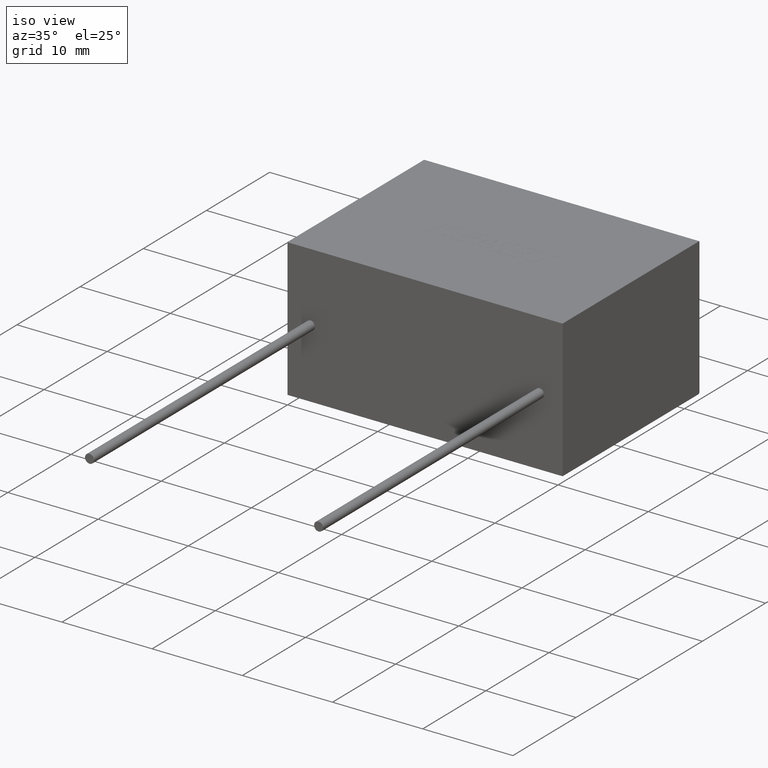
[diagram: clean part render]
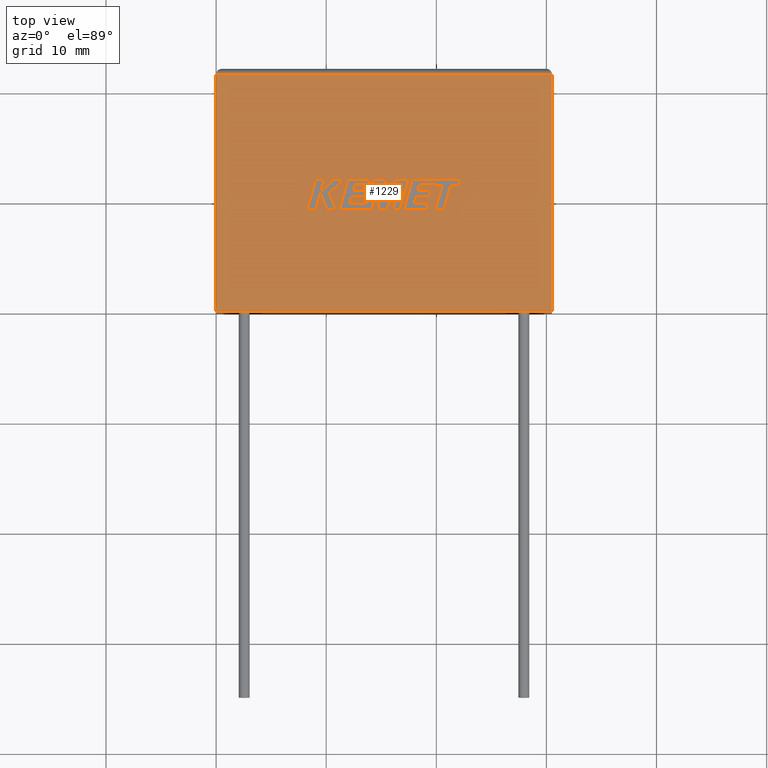
[diagram: tour spotlight — one face highlighted and labeled with its STEP entity id]
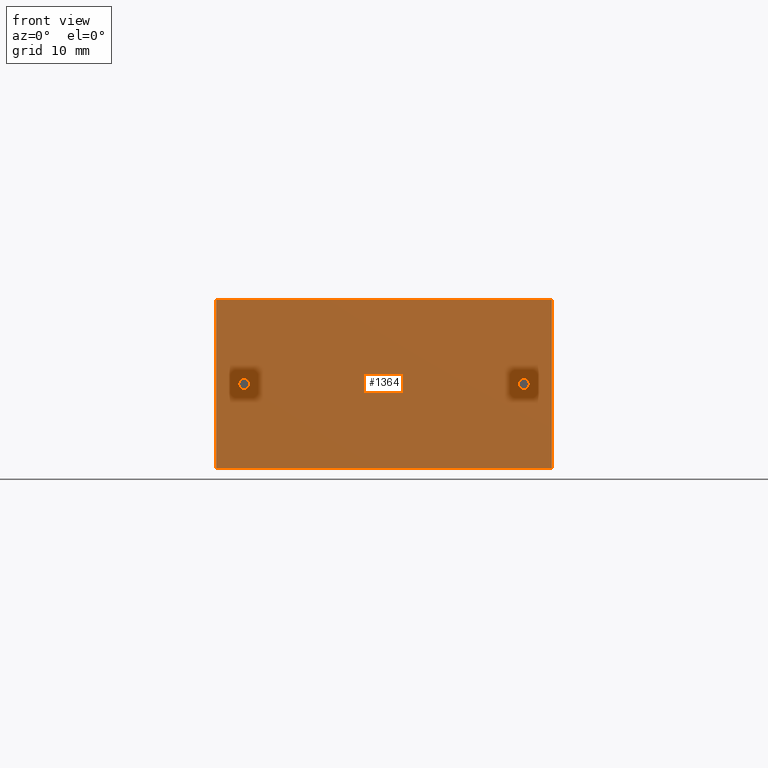
[diagram: tour spotlight — one face highlighted and labeled with its STEP entity id]
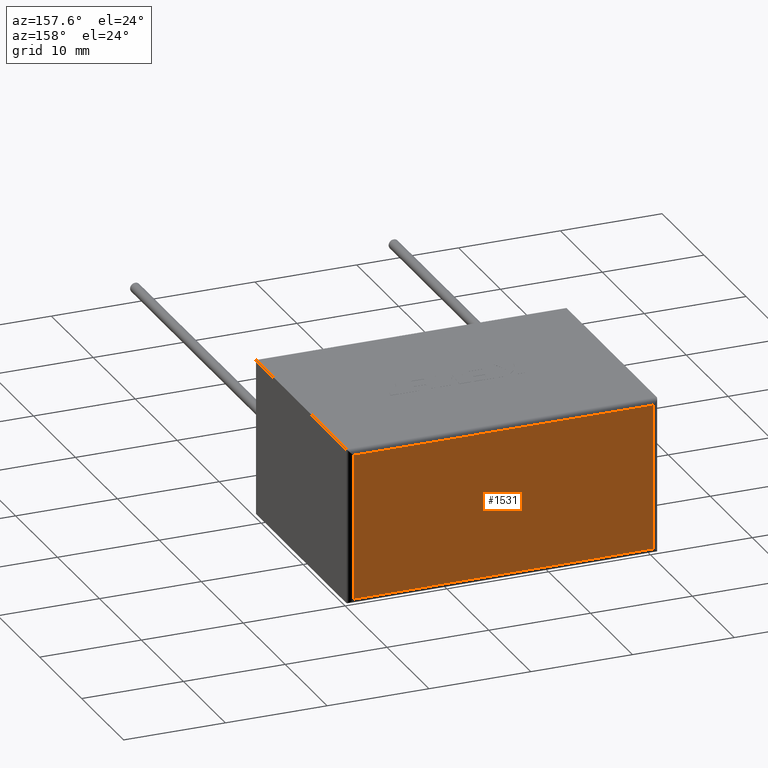
[diagram: tour spotlight — one face highlighted and labeled with its STEP entity id]
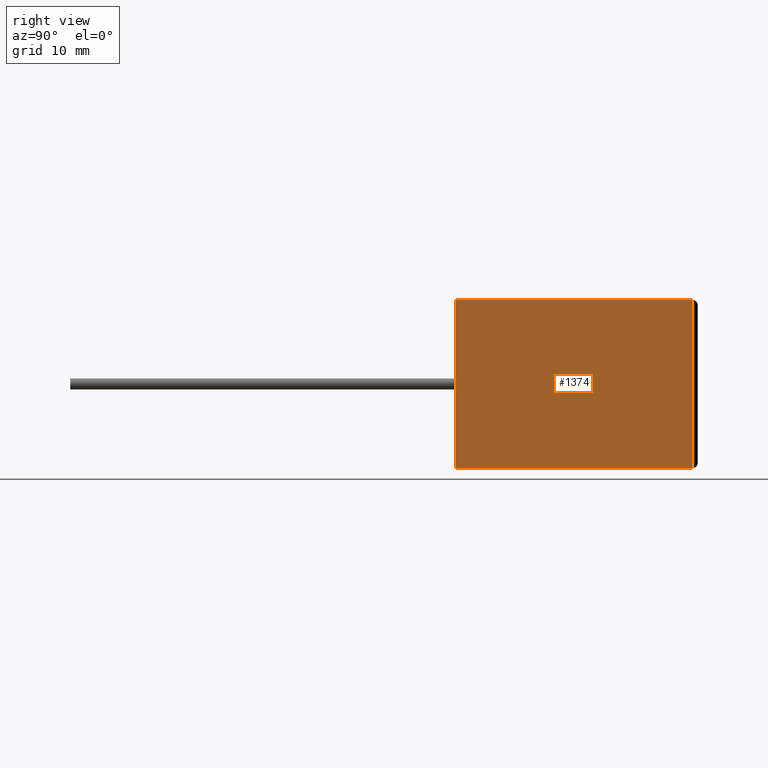
[diagram: tour spotlight — one face highlighted and labeled with its STEP entity id]
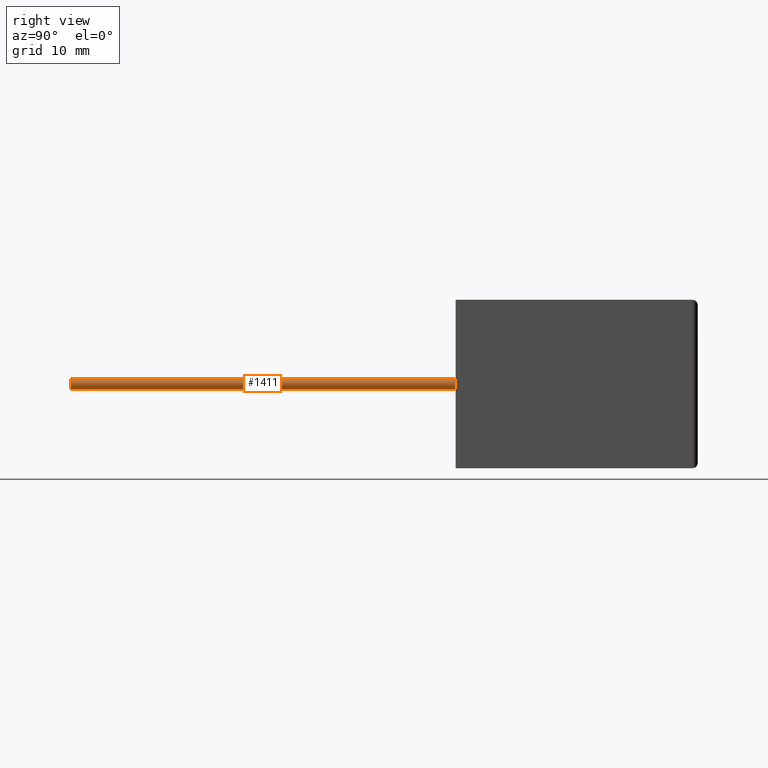
[diagram: tour spotlight — one face highlighted and labeled with its STEP entity id]
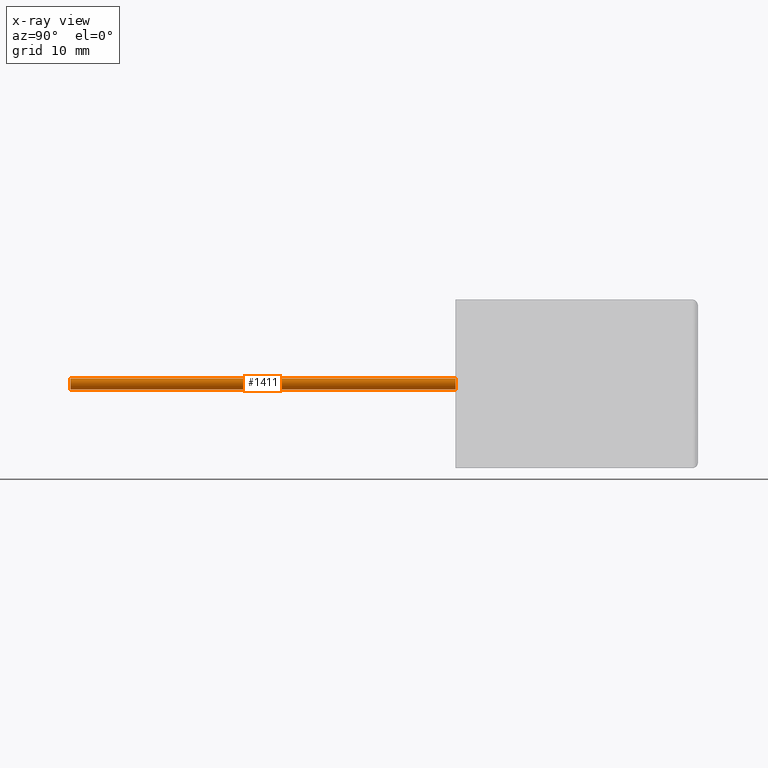
[diagram: x-ray of the same camera — body ghosted, this tour face saturated]
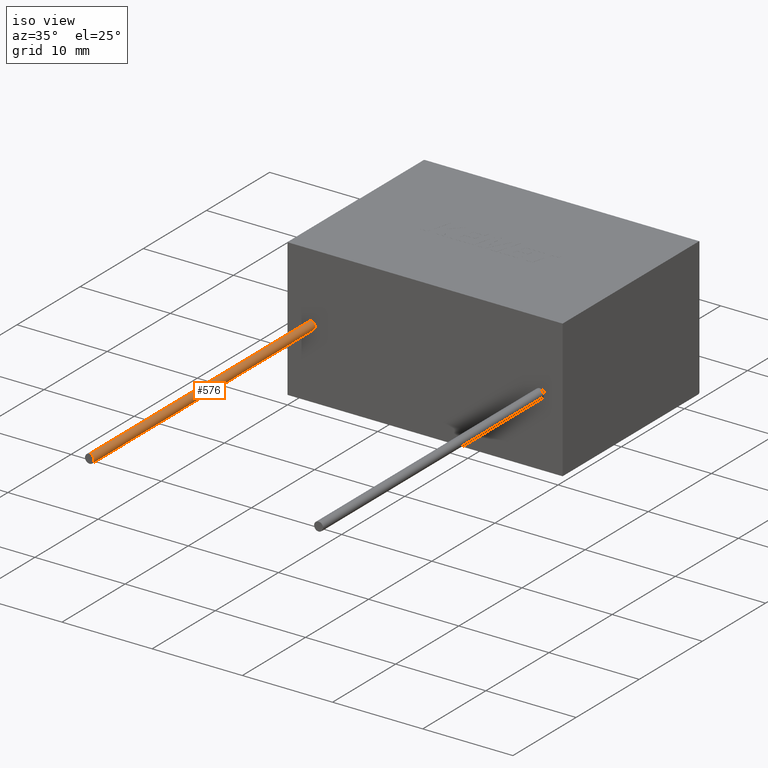
[diagram: tour spotlight — one face highlighted and labeled with its STEP entity id]
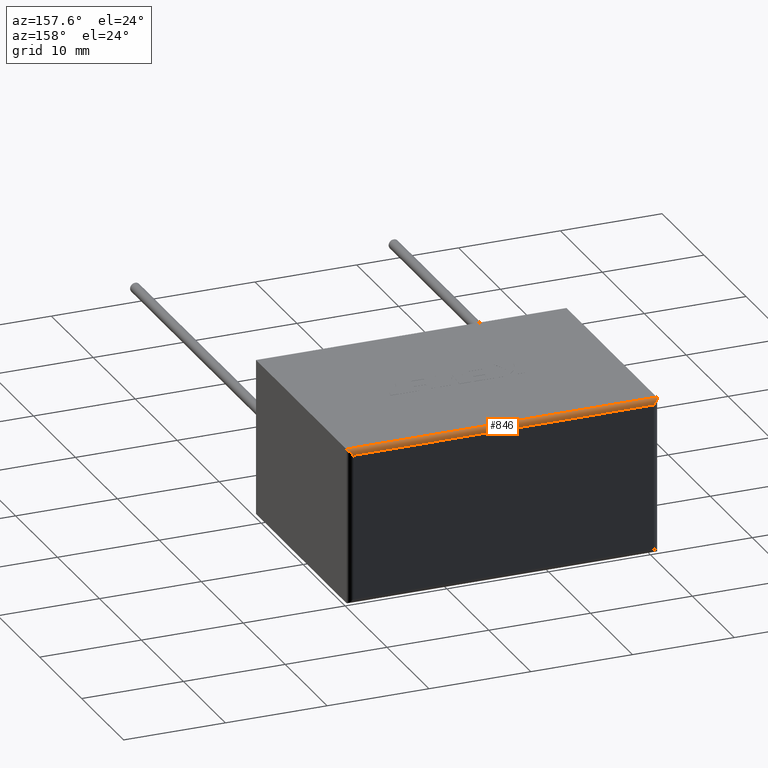
[diagram: tour spotlight — one face highlighted and labeled with its STEP entity id]
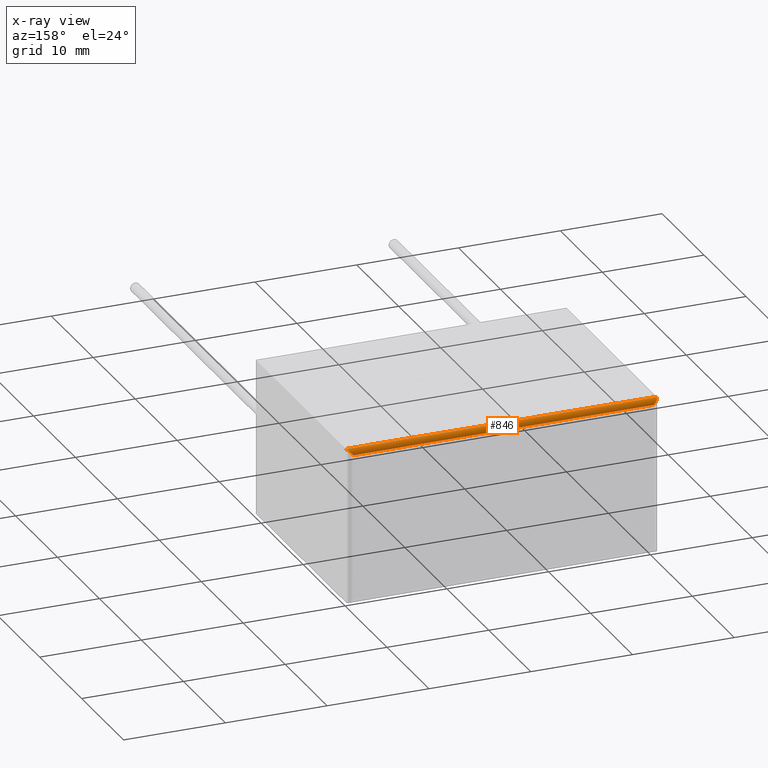
[diagram: x-ray of the same camera — body ghosted, this tour face saturated]
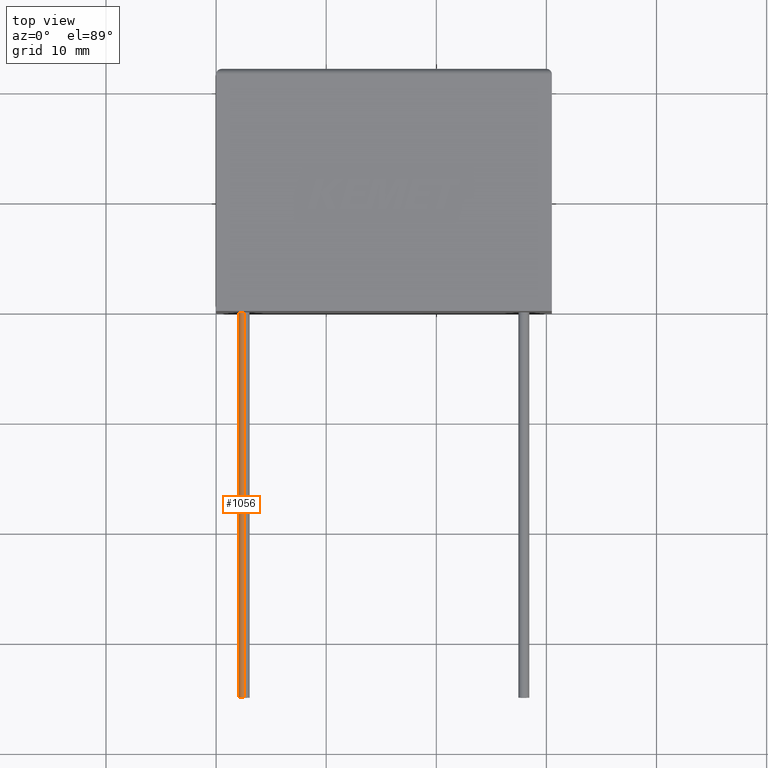
[diagram: tour spotlight — one face highlighted and labeled with its STEP entity id]
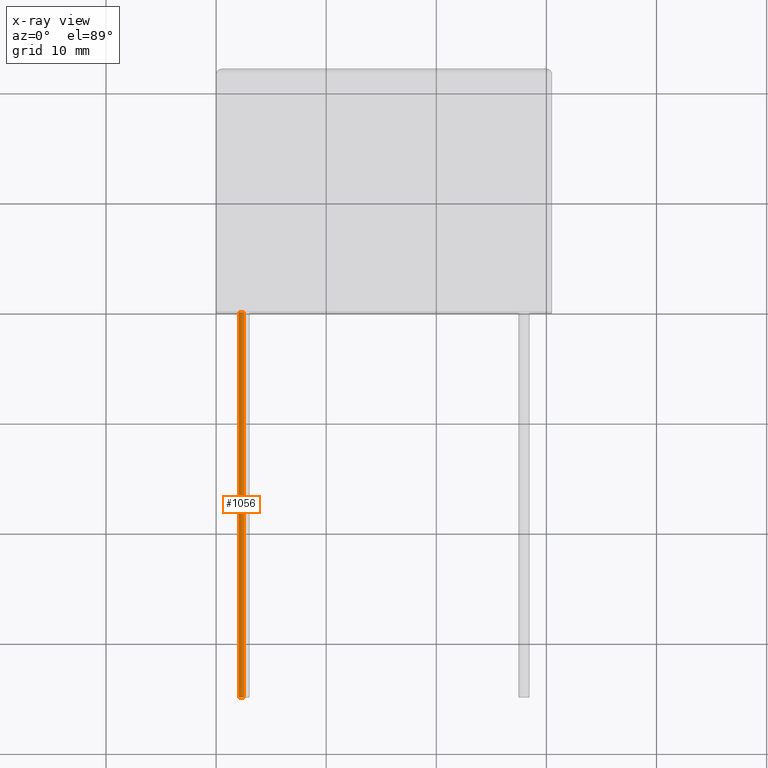
[diagram: x-ray of the same camera — body ghosted, this tour face saturated]
A machine part: a face-by-face anatomy tour. The part has 73 B-rep faces; the first image is the clean iso view, then the 8 largest visible faces are spotlighted one at a time (largest first), each with its STEP entity span.

Face 1 — top view, entity #1229. In plain terms, the highlighted planar face has unit normal (0, 0, -1).
Definition (entity closure, byte-faithful):
#36 = ORIENTED_EDGE ( 'NONE', *, *, #218, .T. ) ;
#218 = EDGE_CURVE ( 'NONE', #1054, #320, #1797, .T. ) ;
#277 = VECTOR ( 'NONE', #2237, 1000.000000000000000 ) ;
#320 = VERTEX_POINT ( 'NONE', #2409 ) ;
#349 = CARTESIAN_POINT ( 'NONE',  ( 0.0000000000000000000, 0.0000000000000000000, 15.30000000000000100 ) ) ;
#356 = PLANE ( 'NONE',  #524 ) ;
#385 = CARTESIAN_POINT ( 'NONE',  ( 30.50000000000000000, 21.50000000000000000, 15.30000000000000100 ) ) ;
#524 = AXIS2_PLACEMENT_3D ( 'NONE', #1487, #2079, #2273 ) ;
#564 = VERTEX_POINT ( 'NONE', #1064 ) ;
#669 = LINE ( 'NONE', #2171, #1569 ) ;
#818 = DIRECTION ( 'NONE',  ( 1.000000000000000000, 0.0000000000000000000, 0.0000000000000000000 ) ) ;
#871 = ORIENTED_EDGE ( 'NONE', *, *, #2384, .T. ) ;
#992 = EDGE_LOOP ( 'NONE', ( #1616, #1927, #871, #36 ) ) ;
#1054 = VERTEX_POINT ( 'NONE', #349 ) ;
#1064 = CARTESIAN_POINT ( 'NONE',  ( 0.0000000000000000000, 21.50000000000000000, 15.30000000000000100 ) ) ;
#1212 = DIRECTION ( 'NONE',  ( -1.000000000000000000, 0.0000000000000000000, 0.0000000000000000000 ) ) ;
#1229 = ADVANCED_FACE ( 'NONE', ( #1878 ), #356, .F. ) ;
#1241 = DIRECTION ( 'NONE',  ( -0.0000000000000000000, -1.000000000000000000, -0.0000000000000000000 ) ) ;
#1390 = EDGE_CURVE ( 'NONE', #320, #1524, #2449, .T. ) ;
#1414 = CARTESIAN_POINT ( 'NONE',  ( 0.0000000000000000000, 0.0000000000000000000, 15.30000000000000100 ) ) ;
#1466 = VECTOR ( 'NONE', #818, 1000.000000000000000 ) ;
#1487 = CARTESIAN_POINT ( 'NONE',  ( 0.0000000000000000000, 0.0000000000000000000, 15.30000000000000100 ) ) ;
#1524 = VERTEX_POINT ( 'NONE', #385 ) ;
#1536 = EDGE_CURVE ( 'NONE', #1524, #564, #669, .T. ) ;
#1569 = VECTOR ( 'NONE', #1212, 1000.000000000000000 ) ;
#1616 = ORIENTED_EDGE ( 'NONE', *, *, #1390, .T. ) ;
#1797 = LINE ( 'NONE', #1958, #1466 ) ;
#1859 = CARTESIAN_POINT ( 'NONE',  ( 30.50000000000000000, 0.0000000000000000000, 15.30000000000000100 ) ) ;
#1878 = FACE_OUTER_BOUND ( 'NONE', #992, .T. ) ;
#1927 = ORIENTED_EDGE ( 'NONE', *, *, #1536, .T. ) ;
#1958 = CARTESIAN_POINT ( 'NONE',  ( 0.0000000000000000000, 0.0000000000000000000, 15.30000000000000100 ) ) ;
#2029 = VECTOR ( 'NONE', #1241, 1000.000000000000000 ) ;
#2079 = DIRECTION ( 'NONE',  ( 0.0000000000000000000, 0.0000000000000000000, -1.000000000000000000 ) ) ;
#2171 = CARTESIAN_POINT ( 'NONE',  ( 0.0000000000000000000, 21.50000000000000000, 15.30000000000000100 ) ) ;
#2237 = DIRECTION ( 'NONE',  ( 0.0000000000000000000, 1.000000000000000000, 0.0000000000000000000 ) ) ;
#2273 = DIRECTION ( 'NONE',  ( -1.000000000000000000, 0.0000000000000000000, -0.0000000000000000000 ) ) ;
#2384 = EDGE_CURVE ( 'NONE', #564, #1054, #2477, .T. ) ;
#2409 = CARTESIAN_POINT ( 'NONE',  ( 30.50000000000000000, 0.0000000000000000000, 15.30000000000000100 ) ) ;
#2449 = LINE ( 'NONE', #1859, #277 ) ;
#2477 = LINE ( 'NONE', #1414, #2029 ) ;

Face 2 — front view, entity #1364. In plain terms, the highlighted planar face has unit normal (0, 1, 0).
Definition (entity closure, byte-faithful):
#19 = LINE ( 'NONE', #502, #847 ) ;
#98 = CARTESIAN_POINT ( 'NONE',  ( 2.550000000000000300, 0.0000000000000000000, 7.650000000000000400 ) ) ;
#116 = DIRECTION ( 'NONE',  ( 0.0000000000000000000, 0.0000000000000000000, 1.000000000000000000 ) ) ;
#141 = CARTESIAN_POINT ( 'NONE',  ( 2.550000000000000300, 0.0000000000000000000, 7.650000000000000400 ) ) ;
#184 = VERTEX_POINT ( 'NONE', #947 ) ;
#200 = CIRCLE ( 'NONE', #658, 0.5000000000000004400 ) ;
#205 = DIRECTION ( 'NONE',  ( -0.0000000000000000000, -0.0000000000000000000, -1.000000000000000000 ) ) ;
#208 = VERTEX_POINT ( 'NONE', #1021 ) ;
#218 = EDGE_CURVE ( 'NONE', #1054, #320, #1797, .T. ) ;
#305 = VERTEX_POINT ( 'NONE', #1278 ) ;
#320 = VERTEX_POINT ( 'NONE', #2409 ) ;
#347 = EDGE_CURVE ( 'NONE', #348, #184, #377, .T. ) ;
#348 = VERTEX_POINT ( 'NONE', #905 ) ;
#349 = CARTESIAN_POINT ( 'NONE',  ( 0.0000000000000000000, 0.0000000000000000000, 15.30000000000000100 ) ) ;
#377 = CIRCLE ( 'NONE', #2473, 0.5000000000000004400 ) ;
#457 = EDGE_CURVE ( 'NONE', #1054, #827, #1747, .T. ) ;
#463 = DIRECTION ( 'NONE',  ( 0.0000000000000000000, 0.0000000000000000000, 1.000000000000000000 ) ) ;
#502 = CARTESIAN_POINT ( 'NONE',  ( 30.50000000000000000, 0.0000000000000000000, 15.30000000000000100 ) ) ;
#568 = DIRECTION ( 'NONE',  ( 1.000000000000000000, 0.0000000000000000000, 0.0000000000000000000 ) ) ;
#575 = DIRECTION ( 'NONE',  ( -0.0000000000000000000, 1.000000000000000000, -0.0000000000000000000 ) ) ;
#641 = DIRECTION ( 'NONE',  ( 0.0000000000000000000, 0.0000000000000000000, -1.000000000000000000 ) ) ;
#658 = AXIS2_PLACEMENT_3D ( 'NONE', #2109, #575, #976 ) ;
#705 = DIRECTION ( 'NONE',  ( -0.0000000000000000000, -0.0000000000000000000, -1.000000000000000000 ) ) ;
#713 = VECTOR ( 'NONE', #205, 1000.000000000000000 ) ;
#738 = CIRCLE ( 'NONE', #2222, 0.5000000000000004400 ) ;
#803 = ORIENTED_EDGE ( 'NONE', *, *, #1763, .F. ) ;
#818 = DIRECTION ( 'NONE',  ( 1.000000000000000000, 0.0000000000000000000, 0.0000000000000000000 ) ) ;
#827 = VERTEX_POINT ( 'NONE', #1704 ) ;
#847 = VECTOR ( 'NONE', #705, 1000.000000000000000 ) ;
#878 = DIRECTION ( 'NONE',  ( 0.0000000000000000000, -0.0000000000000000000, 1.000000000000000000 ) ) ;
#889 = FACE_OUTER_BOUND ( 'NONE', #965, .T. ) ;
#905 = CARTESIAN_POINT ( 'NONE',  ( 2.550000000000000300, 0.0000000000000000000, 8.150000000000000400 ) ) ;
#947 = CARTESIAN_POINT ( 'NONE',  ( 2.550000000000000300, 0.0000000000000000000, 7.150000000000000400 ) ) ;
#965 = EDGE_LOOP ( 'NONE', ( #1345, #1829, #2118, #2224 ) ) ;
#976 = DIRECTION ( 'NONE',  ( 0.0000000000000000000, 0.0000000000000000000, -1.000000000000000000 ) ) ;
#1021 = CARTESIAN_POINT ( 'NONE',  ( 27.94999999999999200, 0.0000000000000000000, 7.150000000000000400 ) ) ;
#1028 = CARTESIAN_POINT ( 'NONE',  ( 0.0000000000000000000, 0.0000000000000000000, 0.0000000000000000000 ) ) ;
#1054 = VERTEX_POINT ( 'NONE', #349 ) ;
#1091 = CARTESIAN_POINT ( 'NONE',  ( 0.0000000000000000000, 0.0000000000000000000, 15.30000000000000100 ) ) ;
#1098 = EDGE_CURVE ( 'NONE', #305, #208, #200, .T. ) ;
#1106 = ORIENTED_EDGE ( 'NONE', *, *, #347, .F. ) ;
#1115 = ORIENTED_EDGE ( 'NONE', *, *, #2483, .T. ) ;
#1202 = CARTESIAN_POINT ( 'NONE',  ( 27.94999999999999200, 0.0000000000000000000, 7.650000000000000400 ) ) ;
#1278 = CARTESIAN_POINT ( 'NONE',  ( 27.94999999999999200, 0.0000000000000000000, 8.150000000000000400 ) ) ;
#1345 = ORIENTED_EDGE ( 'NONE', *, *, #2277, .T. ) ;
#1364 = ADVANCED_FACE ( 'NONE', ( #1366, #889, #1738 ), #2434, .F. ) ;
#1365 = AXIS2_PLACEMENT_3D ( 'NONE', #1202, #1418, #641 ) ;
#1366 = FACE_BOUND ( 'NONE', #1429, .T. ) ;
#1396 = ORIENTED_EDGE ( 'NONE', *, *, #1098, .T. ) ;
#1407 = DIRECTION ( 'NONE',  ( -0.0000000000000000000, -1.000000000000000000, -0.0000000000000000000 ) ) ;
#1417 = LINE ( 'NONE', #1028, #1785 ) ;
#1418 = DIRECTION ( 'NONE',  ( -0.0000000000000000000, 1.000000000000000000, -0.0000000000000000000 ) ) ;
#1421 = CIRCLE ( 'NONE', #1365, 0.5000000000000004400 ) ;
#1429 = EDGE_LOOP ( 'NONE', ( #1396, #1115 ) ) ;
#1443 = VERTEX_POINT ( 'NONE', #1590 ) ;
#1466 = VECTOR ( 'NONE', #818, 1000.000000000000000 ) ;
#1590 = CARTESIAN_POINT ( 'NONE',  ( 30.50000000000000000, 0.0000000000000000000, 0.0000000000000000000 ) ) ;
#1704 = CARTESIAN_POINT ( 'NONE',  ( 0.0000000000000000000, 0.0000000000000000000, 0.0000000000000000000 ) ) ;
#1738 = FACE_BOUND ( 'NONE', #1984, .T. ) ;
#1747 = LINE ( 'NONE', #2320, #713 ) ;
#1763 = EDGE_CURVE ( 'NONE', #184, #348, #738, .T. ) ;
#1785 = VECTOR ( 'NONE', #568, 1000.000000000000000 ) ;
#1797 = LINE ( 'NONE', #1958, #1466 ) ;
#1829 = ORIENTED_EDGE ( 'NONE', *, *, #2176, .F. ) ;
#1958 = CARTESIAN_POINT ( 'NONE',  ( 0.0000000000000000000, 0.0000000000000000000, 15.30000000000000100 ) ) ;
#1984 = EDGE_LOOP ( 'NONE', ( #1106, #803 ) ) ;
#2109 = CARTESIAN_POINT ( 'NONE',  ( 27.94999999999999200, 0.0000000000000000000, 7.650000000000000400 ) ) ;
#2118 = ORIENTED_EDGE ( 'NONE', *, *, #218, .F. ) ;
#2176 = EDGE_CURVE ( 'NONE', #320, #1443, #19, .T. ) ;
#2214 = DIRECTION ( 'NONE',  ( -0.0000000000000000000, -1.000000000000000000, -0.0000000000000000000 ) ) ;
#2222 = AXIS2_PLACEMENT_3D ( 'NONE', #98, #2214, #463 ) ;
#2224 = ORIENTED_EDGE ( 'NONE', *, *, #457, .T. ) ;
#2277 = EDGE_CURVE ( 'NONE', #827, #1443, #1417, .T. ) ;
#2320 = CARTESIAN_POINT ( 'NONE',  ( 0.0000000000000000000, 0.0000000000000000000, 15.30000000000000100 ) ) ;
#2348 = AXIS2_PLACEMENT_3D ( 'NONE', #1091, #2414, #878 ) ;
#2409 = CARTESIAN_POINT ( 'NONE',  ( 30.50000000000000000, 0.0000000000000000000, 15.30000000000000100 ) ) ;
#2414 = DIRECTION ( 'NONE',  ( 0.0000000000000000000, 1.000000000000000000, 0.0000000000000000000 ) ) ;
#2434 = PLANE ( 'NONE',  #2348 ) ;
#2473 = AXIS2_PLACEMENT_3D ( 'NONE', #141, #1407, #116 ) ;
#2483 = EDGE_CURVE ( 'NONE', #208, #305, #1421, .T. ) ;

Face 3 — auxiliary view, entity #1531. In plain terms, the highlighted planar face has unit normal (0, -1, 0).
Definition (entity closure, byte-faithful):
#38 = VECTOR ( 'NONE', #1314, 1000.000000000000000 ) ;
#73 = FACE_OUTER_BOUND ( 'NONE', #1205, .T. ) ;
#228 = ORIENTED_EDGE ( 'NONE', *, *, #792, .T. ) ;
#239 = CARTESIAN_POINT ( 'NONE',  ( 0.5000000000000000000, 22.00000000000000000, 0.5000000000000004400 ) ) ;
#268 = DIRECTION ( 'NONE',  ( 0.0000000000000000000, -1.000000000000000000, 0.0000000000000000000 ) ) ;
#271 = VECTOR ( 'NONE', #1031, 1000.000000000000000 ) ;
#456 = LINE ( 'NONE', #559, #1605 ) ;
#559 = CARTESIAN_POINT ( 'NONE',  ( 0.0000000000000000000, 22.00000000000000000, 14.80000000000000100 ) ) ;
#627 = VERTEX_POINT ( 'NONE', #1665 ) ;
#657 = LINE ( 'NONE', #2087, #38 ) ;
#792 = EDGE_CURVE ( 'NONE', #1528, #1493, #657, .T. ) ;
#812 = DIRECTION ( 'NONE',  ( 1.000000000000000000, -0.0000000000000000000, -0.0000000000000000000 ) ) ;
#975 = CARTESIAN_POINT ( 'NONE',  ( 30.00000000000000000, 22.00000000000000000, 0.5000000000000004400 ) ) ;
#1031 = DIRECTION ( 'NONE',  ( -0.0000000000000000000, -0.0000000000000000000, 1.000000000000000000 ) ) ;
#1153 = EDGE_CURVE ( 'NONE', #1501, #627, #456, .T. ) ;
#1205 = EDGE_LOOP ( 'NONE', ( #1895, #1930, #228, #1317 ) ) ;
#1314 = DIRECTION ( 'NONE',  ( -1.000000000000000000, 0.0000000000000000000, 0.0000000000000000000 ) ) ;
#1317 = ORIENTED_EDGE ( 'NONE', *, *, #2212, .T. ) ;
#1493 = VERTEX_POINT ( 'NONE', #239 ) ;
#1501 = VERTEX_POINT ( 'NONE', #2138 ) ;
#1527 = CARTESIAN_POINT ( 'NONE',  ( 30.00000000000000000, 22.00000000000000000, 15.30000000000000100 ) ) ;
#1528 = VERTEX_POINT ( 'NONE', #975 ) ;
#1531 = ADVANCED_FACE ( 'NONE', ( #73 ), #2324, .F. ) ;
#1595 = AXIS2_PLACEMENT_3D ( 'NONE', #2326, #268, #2358 ) ;
#1605 = VECTOR ( 'NONE', #812, 1000.000000000000000 ) ;
#1665 = CARTESIAN_POINT ( 'NONE',  ( 30.00000000000000000, 22.00000000000000000, 14.80000000000000100 ) ) ;
#1729 = DIRECTION ( 'NONE',  ( 0.0000000000000000000, 0.0000000000000000000, -1.000000000000000000 ) ) ;
#1760 = LINE ( 'NONE', #1527, #2125 ) ;
#1895 = ORIENTED_EDGE ( 'NONE', *, *, #1153, .T. ) ;
#1930 = ORIENTED_EDGE ( 'NONE', *, *, #2242, .T. ) ;
#2087 = CARTESIAN_POINT ( 'NONE',  ( 0.0000000000000000000, 22.00000000000000000, 0.5000000000000004400 ) ) ;
#2125 = VECTOR ( 'NONE', #1729, 1000.000000000000000 ) ;
#2138 = CARTESIAN_POINT ( 'NONE',  ( 0.5000000000000000000, 22.00000000000000000, 14.80000000000000100 ) ) ;
#2177 = CARTESIAN_POINT ( 'NONE',  ( 0.5000000000000000000, 22.00000000000000000, 15.30000000000000100 ) ) ;
#2212 = EDGE_CURVE ( 'NONE', #1493, #1501, #2330, .T. ) ;
#2242 = EDGE_CURVE ( 'NONE', #627, #1528, #1760, .T. ) ;
#2324 = PLANE ( 'NONE',  #1595 ) ;
#2326 = CARTESIAN_POINT ( 'NONE',  ( 0.0000000000000000000, 22.00000000000000000, 15.30000000000000100 ) ) ;
#2330 = LINE ( 'NONE', #2177, #271 ) ;
#2358 = DIRECTION ( 'NONE',  ( 0.0000000000000000000, -0.0000000000000000000, -1.000000000000000000 ) ) ;

Face 4 — right view, entity #1374. In plain terms, the highlighted planar face has unit normal (-1, 0, 0).
Definition (entity closure, byte-faithful):
#19 = LINE ( 'NONE', #502, #847 ) ;
#51 = VECTOR ( 'NONE', #1649, 1000.000000000000000 ) ;
#139 = CARTESIAN_POINT ( 'NONE',  ( 30.50000000000000000, 0.0000000000000000000, 0.0000000000000000000 ) ) ;
#144 = VECTOR ( 'NONE', #697, 1000.000000000000000 ) ;
#186 = ORIENTED_EDGE ( 'NONE', *, *, #2176, .T. ) ;
#277 = VECTOR ( 'NONE', #2237, 1000.000000000000000 ) ;
#320 = VERTEX_POINT ( 'NONE', #2409 ) ;
#335 = FACE_OUTER_BOUND ( 'NONE', #2047, .T. ) ;
#385 = CARTESIAN_POINT ( 'NONE',  ( 30.50000000000000000, 21.50000000000000000, 15.30000000000000100 ) ) ;
#502 = CARTESIAN_POINT ( 'NONE',  ( 30.50000000000000000, 0.0000000000000000000, 15.30000000000000100 ) ) ;
#512 = CARTESIAN_POINT ( 'NONE',  ( 30.50000000000000000, 0.0000000000000000000, 15.30000000000000100 ) ) ;
#578 = EDGE_CURVE ( 'NONE', #1443, #1029, #1578, .T. ) ;
#689 = DIRECTION ( 'NONE',  ( 0.0000000000000000000, 0.0000000000000000000, 1.000000000000000000 ) ) ;
#697 = DIRECTION ( 'NONE',  ( -0.0000000000000000000, -0.0000000000000000000, 1.000000000000000000 ) ) ;
#705 = DIRECTION ( 'NONE',  ( -0.0000000000000000000, -0.0000000000000000000, -1.000000000000000000 ) ) ;
#751 = AXIS2_PLACEMENT_3D ( 'NONE', #512, #1641, #689 ) ;
#822 = LINE ( 'NONE', #884, #144 ) ;
#847 = VECTOR ( 'NONE', #705, 1000.000000000000000 ) ;
#884 = CARTESIAN_POINT ( 'NONE',  ( 30.50000000000000000, 21.50000000000000000, 15.30000000000000100 ) ) ;
#934 = ORIENTED_EDGE ( 'NONE', *, *, #1390, .F. ) ;
#1029 = VERTEX_POINT ( 'NONE', #2311 ) ;
#1086 = ORIENTED_EDGE ( 'NONE', *, *, #578, .T. ) ;
#1336 = EDGE_CURVE ( 'NONE', #1029, #1524, #822, .T. ) ;
#1351 = ORIENTED_EDGE ( 'NONE', *, *, #1336, .T. ) ;
#1374 = ADVANCED_FACE ( 'NONE', ( #335 ), #2441, .F. ) ;
#1390 = EDGE_CURVE ( 'NONE', #320, #1524, #2449, .T. ) ;
#1443 = VERTEX_POINT ( 'NONE', #1590 ) ;
#1524 = VERTEX_POINT ( 'NONE', #385 ) ;
#1578 = LINE ( 'NONE', #139, #51 ) ;
#1590 = CARTESIAN_POINT ( 'NONE',  ( 30.50000000000000000, 0.0000000000000000000, 0.0000000000000000000 ) ) ;
#1641 = DIRECTION ( 'NONE',  ( -1.000000000000000000, 0.0000000000000000000, 0.0000000000000000000 ) ) ;
#1649 = DIRECTION ( 'NONE',  ( 0.0000000000000000000, 1.000000000000000000, 0.0000000000000000000 ) ) ;
#1859 = CARTESIAN_POINT ( 'NONE',  ( 30.50000000000000000, 0.0000000000000000000, 15.30000000000000100 ) ) ;
#2047 = EDGE_LOOP ( 'NONE', ( #1086, #1351, #934, #186 ) ) ;
#2176 = EDGE_CURVE ( 'NONE', #320, #1443, #19, .T. ) ;
#2237 = DIRECTION ( 'NONE',  ( 0.0000000000000000000, 1.000000000000000000, 0.0000000000000000000 ) ) ;
#2311 = CARTESIAN_POINT ( 'NONE',  ( 30.50000000000000000, 21.50000000000000000, 0.0000000000000000000 ) ) ;
#2409 = CARTESIAN_POINT ( 'NONE',  ( 30.50000000000000000, 0.0000000000000000000, 15.30000000000000100 ) ) ;
#2441 = PLANE ( 'NONE',  #751 ) ;
#2449 = LINE ( 'NONE', #1859, #277 ) ;

Face 5 — right view, entity #1411. An x-ray twin of the same camera follows (body ghosted, this face saturated) — the face is partly hidden behind the body. In plain terms, the highlighted cylindrical surface (edge-blend (fillet) strip) has radius 0.5 mm, axis along (-0, 1, -0).
Definition (entity closure, byte-faithful):
#41 = DIRECTION ( 'NONE',  ( 0.0000000000000000000, 0.0000000000000000000, 1.000000000000000000 ) ) ;
#137 = EDGE_CURVE ( 'NONE', #1173, #462, #1644, .T. ) ;
#200 = CIRCLE ( 'NONE', #658, 0.5000000000000004400 ) ;
#208 = VERTEX_POINT ( 'NONE', #1021 ) ;
#240 = ORIENTED_EDGE ( 'NONE', *, *, #503, .F. ) ;
#305 = VERTEX_POINT ( 'NONE', #1278 ) ;
#334 = CARTESIAN_POINT ( 'NONE',  ( 27.94999999999999200, -35.00000000000000000, 7.150000000000000400 ) ) ;
#462 = VERTEX_POINT ( 'NONE', #334 ) ;
#490 = ORIENTED_EDGE ( 'NONE', *, *, #137, .T. ) ;
#492 = ORIENTED_EDGE ( 'NONE', *, *, #1323, .T. ) ;
#494 = ORIENTED_EDGE ( 'NONE', *, *, #1098, .F. ) ;
#503 = EDGE_CURVE ( 'NONE', #1173, #305, #674, .T. ) ;
#546 = CYLINDRICAL_SURFACE ( 'NONE', #1535, 0.5000000000000004400 ) ;
#565 = DIRECTION ( 'NONE',  ( 0.0000000000000000000, 0.0000000000000000000, -1.000000000000000000 ) ) ;
#575 = DIRECTION ( 'NONE',  ( -0.0000000000000000000, 1.000000000000000000, -0.0000000000000000000 ) ) ;
#620 = DIRECTION ( 'NONE',  ( -0.0000000000000000000, 1.000000000000000000, -0.0000000000000000000 ) ) ;
#630 = DIRECTION ( 'NONE',  ( -0.0000000000000000000, 1.000000000000000000, -0.0000000000000000000 ) ) ;
#658 = AXIS2_PLACEMENT_3D ( 'NONE', #2109, #575, #976 ) ;
#674 = LINE ( 'NONE', #2408, #1078 ) ;
#976 = DIRECTION ( 'NONE',  ( 0.0000000000000000000, 0.0000000000000000000, -1.000000000000000000 ) ) ;
#1019 = EDGE_LOOP ( 'NONE', ( #490, #492, #494, #240 ) ) ;
#1021 = CARTESIAN_POINT ( 'NONE',  ( 27.94999999999999200, 0.0000000000000000000, 7.150000000000000400 ) ) ;
#1078 = VECTOR ( 'NONE', #1415, 1000.000000000000000 ) ;
#1098 = EDGE_CURVE ( 'NONE', #305, #208, #200, .T. ) ;
#1154 = CARTESIAN_POINT ( 'NONE',  ( 27.94999999999999200, -35.00000000000000000, 7.650000000000000400 ) ) ;
#1173 = VERTEX_POINT ( 'NONE', #1426 ) ;
#1220 = FACE_OUTER_BOUND ( 'NONE', #1019, .T. ) ;
#1250 = VECTOR ( 'NONE', #630, 1000.000000000000000 ) ;
#1278 = CARTESIAN_POINT ( 'NONE',  ( 27.94999999999999200, 0.0000000000000000000, 8.150000000000000400 ) ) ;
#1323 = EDGE_CURVE ( 'NONE', #462, #208, #2391, .T. ) ;
#1411 = ADVANCED_FACE ( 'NONE', ( #1220 ), #546, .T. ) ;
#1415 = DIRECTION ( 'NONE',  ( -0.0000000000000000000, 1.000000000000000000, -0.0000000000000000000 ) ) ;
#1426 = CARTESIAN_POINT ( 'NONE',  ( 27.94999999999999200, -35.00000000000000000, 8.150000000000000400 ) ) ;
#1485 = AXIS2_PLACEMENT_3D ( 'NONE', #1154, #1717, #565 ) ;
#1535 = AXIS2_PLACEMENT_3D ( 'NONE', #2280, #620, #41 ) ;
#1644 = CIRCLE ( 'NONE', #1485, 0.5000000000000004400 ) ;
#1717 = DIRECTION ( 'NONE',  ( -0.0000000000000000000, 1.000000000000000000, -0.0000000000000000000 ) ) ;
#2109 = CARTESIAN_POINT ( 'NONE',  ( 27.94999999999999200, 0.0000000000000000000, 7.650000000000000400 ) ) ;
#2257 = CARTESIAN_POINT ( 'NONE',  ( 27.94999999999999200, -35.00000000000000000, 7.150000000000000400 ) ) ;
#2280 = CARTESIAN_POINT ( 'NONE',  ( 27.94999999999999200, -35.00000000000000000, 7.650000000000000400 ) ) ;
#2391 = LINE ( 'NONE', #2257, #1250 ) ;
#2408 = CARTESIAN_POINT ( 'NONE',  ( 27.94999999999999200, -35.00000000000000000, 8.150000000000000400 ) ) ;

Face 6 — iso view, entity #576. In plain terms, the highlighted cylindrical surface (edge-blend (fillet) strip) has radius 0.5 mm, axis along (-0, 1, -0).
Definition (entity closure, byte-faithful):
#5 = ORIENTED_EDGE ( 'NONE', *, *, #1503, .F. ) ;
#25 = DIRECTION ( 'NONE',  ( 0.0000000000000000000, -1.000000000000000000, 0.0000000000000000000 ) ) ;
#47 = CARTESIAN_POINT ( 'NONE',  ( 2.550000000000000300, -35.00000000000000000, 8.150000000000000400 ) ) ;
#98 = CARTESIAN_POINT ( 'NONE',  ( 2.550000000000000300, 0.0000000000000000000, 7.650000000000000400 ) ) ;
#101 = DIRECTION ( 'NONE',  ( -0.0000000000000000000, 1.000000000000000000, -0.0000000000000000000 ) ) ;
#184 = VERTEX_POINT ( 'NONE', #947 ) ;
#321 = CARTESIAN_POINT ( 'NONE',  ( 2.550000000000000300, -35.00000000000000000, 7.150000000000000400 ) ) ;
#324 = DIRECTION ( 'NONE',  ( 0.0000000000000000000, 0.0000000000000000000, 1.000000000000000000 ) ) ;
#348 = VERTEX_POINT ( 'NONE', #905 ) ;
#370 = VERTEX_POINT ( 'NONE', #2425 ) ;
#463 = DIRECTION ( 'NONE',  ( 0.0000000000000000000, 0.0000000000000000000, 1.000000000000000000 ) ) ;
#471 = EDGE_CURVE ( 'NONE', #1637, #348, #2250, .T. ) ;
#520 = ORIENTED_EDGE ( 'NONE', *, *, #1763, .T. ) ;
#551 = CYLINDRICAL_SURFACE ( 'NONE', #752, 0.5000000000000004400 ) ;
#576 = ADVANCED_FACE ( 'NONE', ( #960 ), #551, .T. ) ;
#621 = EDGE_LOOP ( 'NONE', ( #5, #676, #520, #1777 ) ) ;
#676 = ORIENTED_EDGE ( 'NONE', *, *, #942, .T. ) ;
#738 = CIRCLE ( 'NONE', #2222, 0.5000000000000004400 ) ;
#752 = AXIS2_PLACEMENT_3D ( 'NONE', #877, #2217, #324 ) ;
#779 = DIRECTION ( 'NONE',  ( 0.0000000000000000000, 0.0000000000000000000, -1.000000000000000000 ) ) ;
#877 = CARTESIAN_POINT ( 'NONE',  ( 2.550000000000000300, -35.00000000000000000, 7.650000000000000400 ) ) ;
#905 = CARTESIAN_POINT ( 'NONE',  ( 2.550000000000000300, 0.0000000000000000000, 8.150000000000000400 ) ) ;
#942 = EDGE_CURVE ( 'NONE', #370, #184, #956, .T. ) ;
#947 = CARTESIAN_POINT ( 'NONE',  ( 2.550000000000000300, 0.0000000000000000000, 7.150000000000000400 ) ) ;
#956 = LINE ( 'NONE', #321, #1196 ) ;
#960 = FACE_OUTER_BOUND ( 'NONE', #621, .T. ) ;
#983 = CARTESIAN_POINT ( 'NONE',  ( 2.550000000000000300, -35.00000000000000000, 7.650000000000000400 ) ) ;
#1196 = VECTOR ( 'NONE', #2084, 1000.000000000000000 ) ;
#1413 = CARTESIAN_POINT ( 'NONE',  ( 2.550000000000000300, -35.00000000000000000, 8.150000000000000400 ) ) ;
#1503 = EDGE_CURVE ( 'NONE', #370, #1637, #1766, .T. ) ;
#1637 = VERTEX_POINT ( 'NONE', #1413 ) ;
#1763 = EDGE_CURVE ( 'NONE', #184, #348, #738, .T. ) ;
#1766 = CIRCLE ( 'NONE', #2435, 0.5000000000000004400 ) ;
#1777 = ORIENTED_EDGE ( 'NONE', *, *, #471, .F. ) ;
#2084 = DIRECTION ( 'NONE',  ( -0.0000000000000000000, 1.000000000000000000, -0.0000000000000000000 ) ) ;
#2132 = VECTOR ( 'NONE', #101, 1000.000000000000000 ) ;
#2214 = DIRECTION ( 'NONE',  ( -0.0000000000000000000, -1.000000000000000000, -0.0000000000000000000 ) ) ;
#2217 = DIRECTION ( 'NONE',  ( -0.0000000000000000000, 1.000000000000000000, -0.0000000000000000000 ) ) ;
#2222 = AXIS2_PLACEMENT_3D ( 'NONE', #98, #2214, #463 ) ;
#2250 = LINE ( 'NONE', #47, #2132 ) ;
#2425 = CARTESIAN_POINT ( 'NONE',  ( 2.550000000000000300, -35.00000000000000000, 7.150000000000000400 ) ) ;
#2435 = AXIS2_PLACEMENT_3D ( 'NONE', #983, #25, #779 ) ;

Face 7 — auxiliary view, entity #846. An x-ray twin of the same camera follows (body ghosted, this face saturated) — the face is partly hidden behind the body. In plain terms, the highlighted cylindrical surface (edge-blend (fillet) strip) has radius 0.5 mm, axis along (-1, 0, 0).
Definition (entity closure, byte-faithful):
#143 =( BOUNDED_CURVE ( )  B_SPLINE_CURVE ( 3, ( #693, #1300, #736, #1883 ),
 .UNSPECIFIED., .F., .F. ) 
 B_SPLINE_CURVE_WITH_KNOTS ( ( 4, 4 ),
 ( 1.570796326794896800, 3.141592653589793100 ),
 .UNSPECIFIED. ) 
 CURVE ( )  GEOMETRIC_REPRESENTATION_ITEM ( )  RATIONAL_B_SPLINE_CURVE ( ( 1.000000000000000000, 0.8047378541243650500, 0.8047378541243650500, 1.000000000000000000 ) ) 
 REPRESENTATION_ITEM ( '' )  );
#231 = CARTESIAN_POINT ( 'NONE',  ( 0.0000000000000000000, 21.50000000000000000, 14.80000000000000100 ) ) ;
#385 = CARTESIAN_POINT ( 'NONE',  ( 30.50000000000000000, 21.50000000000000000, 15.30000000000000100 ) ) ;
#456 = LINE ( 'NONE', #559, #1605 ) ;
#559 = CARTESIAN_POINT ( 'NONE',  ( 0.0000000000000000000, 22.00000000000000000, 14.80000000000000100 ) ) ;
#564 = VERTEX_POINT ( 'NONE', #1064 ) ;
#627 = VERTEX_POINT ( 'NONE', #1665 ) ;
#628 = DIRECTION ( 'NONE',  ( -1.000000000000000000, 0.0000000000000000000, 0.0000000000000000000 ) ) ;
#669 = LINE ( 'NONE', #2171, #1569 ) ;
#693 = CARTESIAN_POINT ( 'NONE',  ( 0.5000000000000000000, 22.00000000000000000, 14.80000000000000100 ) ) ;
#736 = CARTESIAN_POINT ( 'NONE',  ( 1.442892915397364600E-016, 21.79289321881344700, 15.29999999999999900 ) ) ;
#812 = DIRECTION ( 'NONE',  ( 1.000000000000000000, -0.0000000000000000000, -0.0000000000000000000 ) ) ;
#846 = ADVANCED_FACE ( 'NONE', ( #2011 ), #1394, .T. ) ;
#876 = EDGE_CURVE ( 'NONE', #1501, #564, #143, .T. ) ;
#925 = ORIENTED_EDGE ( 'NONE', *, *, #1153, .F. ) ;
#987 = EDGE_LOOP ( 'NONE', ( #1435, #2422, #1675, #925 ) ) ;
#1064 = CARTESIAN_POINT ( 'NONE',  ( 0.0000000000000000000, 21.50000000000000000, 15.30000000000000100 ) ) ;
#1103 = CARTESIAN_POINT ( 'NONE',  ( 30.29289321881344700, 22.00000000000000400, 15.09289321881345300 ) ) ;
#1138 = AXIS2_PLACEMENT_3D ( 'NONE', #231, #628, #1279 ) ;
#1153 = EDGE_CURVE ( 'NONE', #1501, #627, #456, .T. ) ;
#1212 = DIRECTION ( 'NONE',  ( -1.000000000000000000, 0.0000000000000000000, 0.0000000000000000000 ) ) ;
#1273 = EDGE_CURVE ( 'NONE', #627, #1524, #2038, .T. ) ;
#1279 = DIRECTION ( 'NONE',  ( 0.0000000000000000000, 0.0000000000000000000, 1.000000000000000000 ) ) ;
#1298 = CARTESIAN_POINT ( 'NONE',  ( 30.50000000000000000, 21.79289321881345000, 15.30000000000000100 ) ) ;
#1300 = CARTESIAN_POINT ( 'NONE',  ( 0.2071067811865475200, 21.99999999999999300, 15.09289321881344900 ) ) ;
#1394 = CYLINDRICAL_SURFACE ( 'NONE', #1138, 0.5000000000000004400 ) ;
#1435 = ORIENTED_EDGE ( 'NONE', *, *, #876, .T. ) ;
#1501 = VERTEX_POINT ( 'NONE', #2138 ) ;
#1524 = VERTEX_POINT ( 'NONE', #385 ) ;
#1536 = EDGE_CURVE ( 'NONE', #1524, #564, #669, .T. ) ;
#1569 = VECTOR ( 'NONE', #1212, 1000.000000000000000 ) ;
#1605 = VECTOR ( 'NONE', #812, 1000.000000000000000 ) ;
#1665 = CARTESIAN_POINT ( 'NONE',  ( 30.00000000000000000, 22.00000000000000000, 14.80000000000000100 ) ) ;
#1675 = ORIENTED_EDGE ( 'NONE', *, *, #1273, .F. ) ;
#1681 = CARTESIAN_POINT ( 'NONE',  ( 30.50000000000000000, 21.50000000000000000, 15.30000000000000100 ) ) ;
#1883 = CARTESIAN_POINT ( 'NONE',  ( 0.0000000000000000000, 21.50000000000000000, 15.30000000000000100 ) ) ;
#2011 = FACE_OUTER_BOUND ( 'NONE', #987, .T. ) ;
#2038 =( BOUNDED_CURVE ( )  B_SPLINE_CURVE ( 3, ( #2438, #1103, #1298, #1681 ),
 .UNSPECIFIED., .F., .F. ) 
 B_SPLINE_CURVE_WITH_KNOTS ( ( 4, 4 ),
 ( 1.570796326794896600, 3.141592653589793100 ),
 .UNSPECIFIED. ) 
 CURVE ( )  GEOMETRIC_REPRESENTATION_ITEM ( )  RATIONAL_B_SPLINE_CURVE ( ( 1.000000000000000000, 0.8047378541243649400, 0.8047378541243649400, 1.000000000000000000 ) ) 
 REPRESENTATION_ITEM ( '' )  );
#2138 = CARTESIAN_POINT ( 'NONE',  ( 0.5000000000000000000, 22.00000000000000000, 14.80000000000000100 ) ) ;
#2171 = CARTESIAN_POINT ( 'NONE',  ( 0.0000000000000000000, 21.50000000000000000, 15.30000000000000100 ) ) ;
#2422 = ORIENTED_EDGE ( 'NONE', *, *, #1536, .F. ) ;
#2438 = CARTESIAN_POINT ( 'NONE',  ( 30.00000000000000000, 22.00000000000000000, 14.80000000000000100 ) ) ;

Face 8 — top view, entity #1056. An x-ray twin of the same camera follows (body ghosted, this face saturated) — the face is partly hidden behind the body. In plain terms, the highlighted cylindrical surface (edge-blend (fillet) strip) has radius 0.5 mm, axis along (-0, 1, -0).
Definition (entity closure, byte-faithful):
#47 = CARTESIAN_POINT ( 'NONE',  ( 2.550000000000000300, -35.00000000000000000, 8.150000000000000400 ) ) ;
#49 = CYLINDRICAL_SURFACE ( 'NONE', #1932, 0.5000000000000004400 ) ;
#101 = DIRECTION ( 'NONE',  ( -0.0000000000000000000, 1.000000000000000000, -0.0000000000000000000 ) ) ;
#116 = DIRECTION ( 'NONE',  ( 0.0000000000000000000, 0.0000000000000000000, 1.000000000000000000 ) ) ;
#141 = CARTESIAN_POINT ( 'NONE',  ( 2.550000000000000300, 0.0000000000000000000, 7.650000000000000400 ) ) ;
#142 = AXIS2_PLACEMENT_3D ( 'NONE', #688, #888, #369 ) ;
#184 = VERTEX_POINT ( 'NONE', #947 ) ;
#288 = ORIENTED_EDGE ( 'NONE', *, *, #347, .T. ) ;
#321 = CARTESIAN_POINT ( 'NONE',  ( 2.550000000000000300, -35.00000000000000000, 7.150000000000000400 ) ) ;
#347 = EDGE_CURVE ( 'NONE', #348, #184, #377, .T. ) ;
#348 = VERTEX_POINT ( 'NONE', #905 ) ;
#369 = DIRECTION ( 'NONE',  ( 0.0000000000000000000, 0.0000000000000000000, -1.000000000000000000 ) ) ;
#370 = VERTEX_POINT ( 'NONE', #2425 ) ;
#377 = CIRCLE ( 'NONE', #2473, 0.5000000000000004400 ) ;
#471 = EDGE_CURVE ( 'NONE', #1637, #348, #2250, .T. ) ;
#688 = CARTESIAN_POINT ( 'NONE',  ( 2.550000000000000300, -35.00000000000000000, 7.650000000000000400 ) ) ;
#712 = EDGE_CURVE ( 'NONE', #1637, #370, #1724, .T. ) ;
#753 = ORIENTED_EDGE ( 'NONE', *, *, #471, .T. ) ;
#758 = CARTESIAN_POINT ( 'NONE',  ( 2.550000000000000300, -35.00000000000000000, 7.650000000000000400 ) ) ;
#888 = DIRECTION ( 'NONE',  ( 0.0000000000000000000, -1.000000000000000000, 0.0000000000000000000 ) ) ;
#898 = ORIENTED_EDGE ( 'NONE', *, *, #712, .F. ) ;
#905 = CARTESIAN_POINT ( 'NONE',  ( 2.550000000000000300, 0.0000000000000000000, 8.150000000000000400 ) ) ;
#940 = DIRECTION ( 'NONE',  ( -0.0000000000000000000, 1.000000000000000000, -0.0000000000000000000 ) ) ;
#942 = EDGE_CURVE ( 'NONE', #370, #184, #956, .T. ) ;
#947 = CARTESIAN_POINT ( 'NONE',  ( 2.550000000000000300, 0.0000000000000000000, 7.150000000000000400 ) ) ;
#956 = LINE ( 'NONE', #321, #1196 ) ;
#1056 = ADVANCED_FACE ( 'NONE', ( #2339 ), #49, .T. ) ;
#1082 = EDGE_LOOP ( 'NONE', ( #1518, #898, #753, #288 ) ) ;
#1196 = VECTOR ( 'NONE', #2084, 1000.000000000000000 ) ;
#1407 = DIRECTION ( 'NONE',  ( -0.0000000000000000000, -1.000000000000000000, -0.0000000000000000000 ) ) ;
#1413 = CARTESIAN_POINT ( 'NONE',  ( 2.550000000000000300, -35.00000000000000000, 8.150000000000000400 ) ) ;
#1518 = ORIENTED_EDGE ( 'NONE', *, *, #942, .F. ) ;
#1637 = VERTEX_POINT ( 'NONE', #1413 ) ;
#1724 = CIRCLE ( 'NONE', #142, 0.5000000000000004400 ) ;
#1726 = DIRECTION ( 'NONE',  ( 0.0000000000000000000, 0.0000000000000000000, 1.000000000000000000 ) ) ;
#1932 = AXIS2_PLACEMENT_3D ( 'NONE', #758, #940, #1726 ) ;
#2084 = DIRECTION ( 'NONE',  ( -0.0000000000000000000, 1.000000000000000000, -0.0000000000000000000 ) ) ;
#2132 = VECTOR ( 'NONE', #101, 1000.000000000000000 ) ;
#2250 = LINE ( 'NONE', #47, #2132 ) ;
#2339 = FACE_OUTER_BOUND ( 'NONE', #1082, .T. ) ;
#2425 = CARTESIAN_POINT ( 'NONE',  ( 2.550000000000000300, -35.00000000000000000, 7.150000000000000400 ) ) ;
#2473 = AXIS2_PLACEMENT_3D ( 'NONE', #141, #1407, #116 ) ;